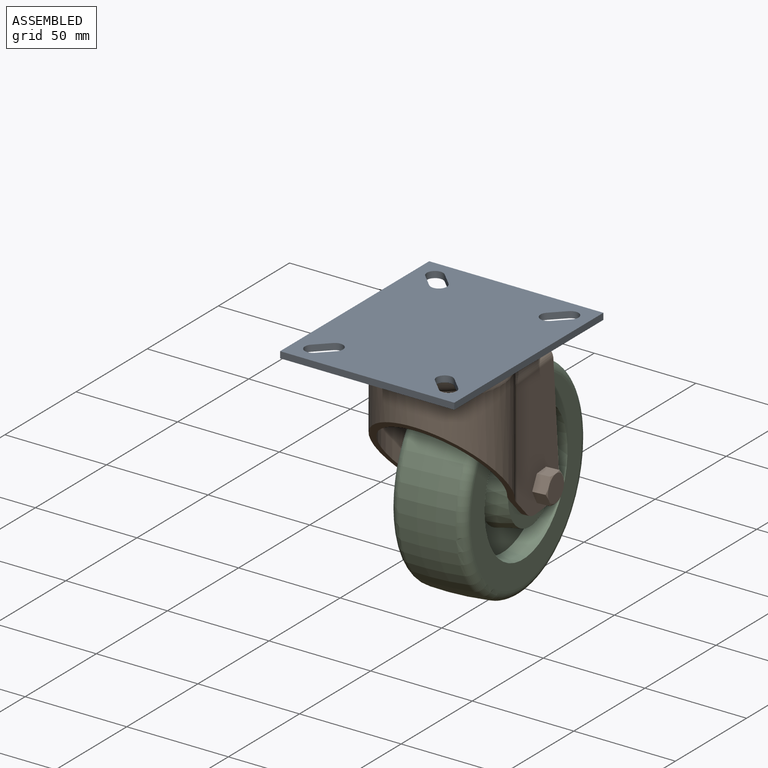
[diagram: assembled view]
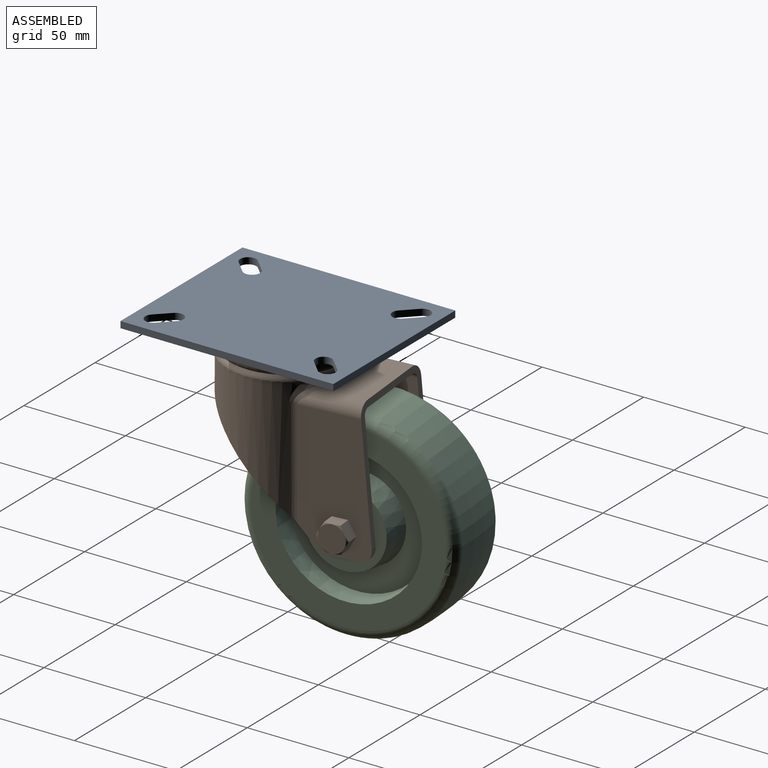
[diagram: assembled view, second angle]
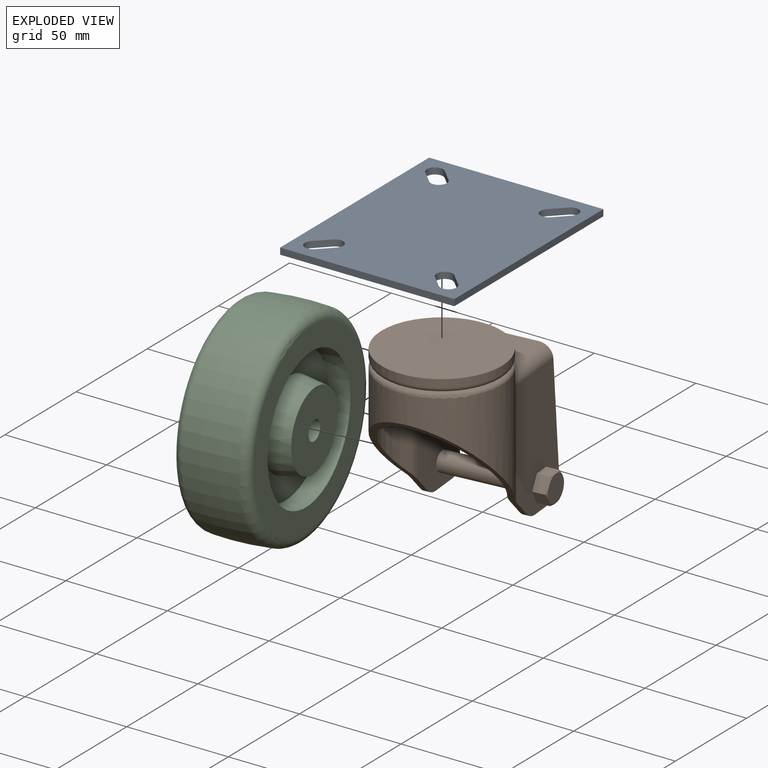
[diagram: exploded view]
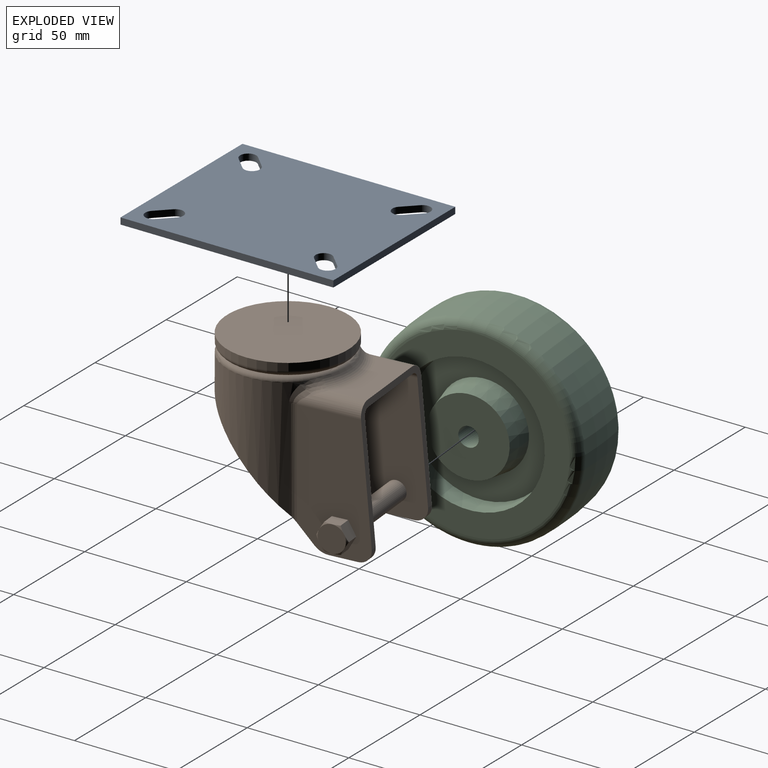
[diagram: exploded view, second angle]
ASSEMBLY  parts=3 mates=2
PART A: 26 faces, bbox 104.8x85.7x7.2 mm
  f0: plane 54.99x54.99mm, normal (0,0,-1), area 2375.1mm2, adj f25
  f1: plane 104.78x85.73mm, normal (0,0,1), area 8498.8mm2, adj f2,f3,f4,f5,f6,f7,f8,f9
  f2: cylinder r=3.97mm len=6.78mm, axis (0,0,1), area 39.6mm2, adj f1,f3,f5,f22
  f3: plane 6.35x6.35mm, normal (-0.71,-0.71,0), area 28.5mm2, adj f1,f2,f4,f22
  f4: cylinder r=3.97mm len=6.78mm, axis (0,0,1), area 39.6mm2, adj f1,f3,f5,f22
  f5: plane 6.35x6.35mm, normal (0.71,0.71,0), area 28.5mm2, adj f1,f2,f4,f22
  f6: cylinder r=3.97mm len=6.78mm, axis (0,0,1), area 39.6mm2, adj f1,f7,f9,f22
  f7: plane 6.35x6.35mm, normal (-0.71,0.71,0), area 28.5mm2, adj f1,f6,f8,f22
  f8: cylinder r=3.97mm len=6.78mm, axis (0,0,1), area 39.6mm2, adj f1,f7,f9,f22
  f9: plane 6.35x6.35mm, normal (0.71,-0.71,0), area 28.5mm2, adj f1,f6,f8,f22
  f10: cylinder r=3.97mm len=6.78mm, axis (0,0,1), area 39.6mm2, adj f1,f11,f13,f22
  f11: plane 6.35x6.35mm, normal (0.71,0.71,0), area 28.5mm2, adj f1,f10,f12,f22
  f12: cylinder r=3.97mm len=6.78mm, axis (0,0,1), area 39.6mm2, adj f1,f11,f13,f22
  f13: plane 6.35x6.35mm, normal (-0.71,-0.71,0), area 28.5mm2, adj f1,f10,f12,f22
  f14: cylinder r=3.97mm len=6.78mm, axis (0,0,1), area 39.6mm2, adj f1,f15,f17,f22
  f15: plane 6.35x6.35mm, normal (0.71,-0.71,0), area 28.5mm2, adj f1,f14,f16,f22
  f16: cylinder r=3.97mm len=6.78mm, axis (0,0,1), area 39.6mm2, adj f1,f15,f17,f22
  f17: plane 6.35x6.35mm, normal (-0.71,0.71,0), area 28.5mm2, adj f1,f14,f16,f22
  f18: plane 85.73x3.18mm, normal (-1,0,0), area 272.2mm2, adj f1,f19,f21,f22
  f19: plane 104.78x3.18mm, normal (0,-1,0), area 332.7mm2, adj f1,f18,f20,f22
  f20: plane 85.73x3.18mm, normal (1,0,0), area 272.2mm2, adj f1,f19,f21,f22
  f21: plane 104.78x3.18mm, normal (0,1,0), area 332.7mm2, adj f1,f18,f20,f22
  f22: plane 104.78x85.73mm, normal (0,0,-1), area 5759.7mm2, adj f2,f3,f4,f5,f6,f7,f8,f9
  f23: cylinder r=29.53mm len=59.06mm, axis (0,0,-1), area 377mm2, adj f22,f24
  f24: plane 59.06x59.06mm, normal (0,0,-1), area 364mm2, adj f23,f25
  f25: cylinder r=27.5mm len=54.99mm, axis (0,0,-1), area 351mm2, adj f0,f24
PART B: 66 faces, bbox 85.4x64.5x82.3 mm
  f0: plane 63.5x34.7mm, normal (0,-1,0), area 1842.7mm2, adj f7,f9,f16,f18,f20,f22,f23,f53
  f1: plane 63.5x34.7mm, normal (0,1,0), area 1842.7mm2, adj f8,f15,f16,f17,f19,f21,f23,f47
  f2: plane 63.5x34.7mm, normal (0,1,0), area 1920mm2, adj f16,f18,f20,f22,f23,f30,f31,f39
  f3: plane 63.5x34.7mm, normal (0,-1,0), area 1920mm2, adj f16,f17,f19,f21,f23,f32,f33,f39
  f4: cylinder r=29.53mm len=59.06mm, axis (0,0,1), area 3904.9mm2, adj f5,f9,f10,f14,f15,f23
  f5: torus R=26.99mm, axis (0,0,-1), area 677.2mm2, adj f4,f11,f12,f13,f37
  f6: plane 36.51x17.17mm, normal (0,0,1), area 500.9mm2, adj f7,f8,f12,f16
  f7: cylinder r=6.35mm len=29.72mm, axis (1,0,0), area 237.1mm2, adj f0,f6,f10,f11,f16
  f8: cylinder r=6.35mm len=29.72mm, axis (-1,0,0), area 237.1mm2, adj f1,f6,f13,f14,f16
  f9: cylinder r=6.35mm len=52.46mm, axis (0,0,1), area 171mm2, adj f0,f4,f10,f23
  f10: bspline ~11.63x9.76mm, area 44.4mm2, adj f4,f7,f9,f11
  f11: bspline ~13.7x9.92mm, area 52.9mm2, adj f5,f7,f10,f12
  f12: torus R=35.23mm, axis (0,0,-1), area 261.9mm2, adj f5,f6,f11,f13
  f13: bspline ~13.11x9.09mm, area 52.9mm2, adj f5,f8,f12,f14
  f14: bspline ~11.69x9.56mm, area 44.4mm2, adj f4,f8,f13,f15
  f15: cylinder r=6.35mm len=52.46mm, axis (0,0,1), area 171mm2, adj f1,f4,f14,f23
  f16: plane 63.18x49.45mm, normal (-1,0,0.09), area 524.8mm2, adj f0,f1,f2,f3,f6,f7,f8,f17
  f17: cylinder r=6.35mm len=6.9mm, axis (0,1,0), area 33.4mm2, adj f1,f3,f16,f19
  f18: cylinder r=6.35mm len=6.9mm, axis (0,1,0), area 33.4mm2, adj f0,f2,f16,f20
  f19: plane 13.5x3.18mm, normal (0,0,-1), area 42.9mm2, adj f1,f3,f17,f21
  f20: plane 13.5x3.18mm, normal (0,0,-1), area 42.9mm2, adj f0,f2,f18,f22
  f21: cylinder r=9.53mm len=6.79mm, axis (0,1,0), area 24mm2, adj f1,f3,f19,f23
  f22: cylinder r=9.53mm len=6.79mm, axis (0,1,0), area 24mm2, adj f0,f2,f20,f23
  f23: plane 59.24x56.87mm, normal (0.71,0,-0.7), area 642.8mm2, adj f0,f1,f2,f3,f4,f9,f15,f21
  f24: plane 53.37x53.16mm, normal (0,0,-1), area 2190.4mm2, adj f25,f26,f27,f28,f29,f35
  f25: torus R=35.23mm, axis (0,0,-1), area 359.7mm2, adj f24,f26,f27,f34
  f26: bspline ~14.55x8.2mm, area 56.6mm2, adj f24,f25,f28,f31
  f27: bspline ~13.96x7.44mm, area 56.6mm2, adj f24,f25,f29,f33
  f28: bspline ~11.63x11.36mm, area 56.2mm2, adj f24,f26,f30,f31,f35
  f29: bspline ~11.69x11.16mm, area 56.2mm2, adj f24,f27,f32,f33,f35
  f30: cylinder r=9.53mm len=52.46mm, axis (0,0,1), area 252.4mm2, adj f2,f23,f28,f35
  f31: cylinder r=3.17mm len=29.72mm, axis (1,0,0), area 119.3mm2, adj f2,f16,f26,f28,f34
  f32: cylinder r=9.53mm len=52.46mm, axis (0,0,1), area 252.4mm2, adj f3,f23,f29,f35
  f33: cylinder r=3.17mm len=29.72mm, axis (-1,0,0), area 119.3mm2, adj f3,f16,f27,f29,f34
  f34: plane 36.51x17.45mm, normal (0,0,-1), area 511.1mm2, adj f16,f25,f31,f33
  f35: cylinder r=26.35mm len=56.3mm, axis (0,0,1), area 3552mm2, adj f23,f24,f28,f29,f30,f32
  f36: cylinder r=29.53mm len=59.06mm, axis (0,0,-1), area 688mm2, adj f37,f38
  f37: torus R=26.99mm, axis (0,0,-1), area 717.1mm2, adj f5,f36
  f38: plane 59.06x59.06mm, normal (0,0,1), area 2739.1mm2, adj f36
  f39: cylinder r=4.76mm len=42.86mm, axis (0,1,0), area 1282.6mm2, adj f2,f3
  f40: plane 13.1x13.1mm, normal (0,1,0), area 134.7mm2, adj f41,f42,f43,f44,f45,f46
  f41: cone r=6.55mm half-angle=60deg, axis (0,-1,0), area 4.2mm2, adj f40,f51,f52
  f42: cone r=6.55mm half-angle=60deg, axis (0,-1,0), area 4.2mm2, adj f40,f50,f51
  f43: cone r=6.55mm half-angle=60deg, axis (0,-1,0), area 4.2mm2, adj f40,f49,f50
  f44: cone r=6.55mm half-angle=60deg, axis (0,-1,0), area 4.2mm2, adj f40,f48,f49
  f45: cone r=6.55mm half-angle=60deg, axis (0,-1,0), area 4.2mm2, adj f40,f47,f52
  f46: cone r=6.55mm half-angle=60deg, axis (0,-1,0), area 4.2mm2, adj f40,f47,f48
  f47: plane 7.36x7.17mm, normal (0.87,0,0.5), area 49.4mm2, adj f1,f45,f46,f48,f52
  f48: plane 7.36x7.17mm, normal (0.87,0,-0.5), area 49.4mm2, adj f1,f44,f46,f47,f49
  f49: plane 8.19x7.36mm, normal (0,0,-1), area 49.4mm2, adj f1,f43,f44,f48,f50
  f50: plane 7.36x7.17mm, normal (-0.87,0,-0.5), area 49.4mm2, adj f1,f42,f43,f49,f51
  f51: plane 7.36x7.17mm, normal (-0.87,0,0.5), area 49.4mm2, adj f1,f41,f42,f50,f52
  f52: plane 8.19x7.36mm, normal (0,0,1), area 49.4mm2, adj f1,f41,f45,f47,f51
  f53: plane 8.19x7.36mm, normal (0,0,1), area 49.4mm2, adj f0,f54,f58,f63,f64
  f54: plane 7.36x7.17mm, normal (-0.87,0,0.5), area 49.4mm2, adj f0,f53,f55,f62,f63
  f55: plane 7.36x7.17mm, normal (-0.87,0,-0.5), area 49.4mm2, adj f0,f54,f56,f61,f62
  f56: plane 8.19x7.36mm, normal (0,0,-1), area 49.4mm2, adj f0,f55,f57,f60,f61
  f57: plane 7.36x7.17mm, normal (0.87,0,-0.5), area 49.4mm2, adj f0,f56,f58,f59,f60
  f58: plane 7.36x7.17mm, normal (0.87,0,0.5), area 49.4mm2, adj f0,f53,f57,f59,f64
  f59: cone r=6.55mm half-angle=60deg, axis (0,1,0), area 4.2mm2, adj f57,f58,f65
  f60: cone r=6.55mm half-angle=60deg, axis (0,1,0), area 4.2mm2, adj f56,f57,f65
  f61: cone r=6.55mm half-angle=60deg, axis (0,1,0), area 4.2mm2, adj f55,f56,f65
  f62: cone r=6.55mm half-angle=60deg, axis (0,1,0), area 4.2mm2, adj f54,f55,f65
  f63: cone r=6.55mm half-angle=60deg, axis (0,1,0), area 4.2mm2, adj f53,f54,f65
  f64: cone r=6.55mm half-angle=60deg, axis (0,1,0), area 4.2mm2, adj f53,f58,f65
  f65: plane 13.1x13.1mm, normal (0,-1,0), area 134.7mm2, adj f59,f60,f61,f62,f63,f64
PART C: 14 faces, bbox 108.8x40x108.8 mm
  f0: plane 38.1x38.1mm, normal (0,-1,0), area 1068.8mm2, adj f1,f13
  f1: cone r=21.18mm half-angle=10deg, axis (0,1,0), area 1548.3mm2, adj f0,f2
  f2: plane 66.15x66.15mm, normal (0,-1,0), area 2028mm2, adj f1,f3
  f3: cone r=33.91mm half-angle=5deg, axis (0,-1,0), area 2012.1mm2, adj f2,f4
  f4: plane 90.97x90.97mm, normal (0,-1,0), area 2886.9mm2, adj f3,f5
  f5: torus R=45.48mm, axis (0,-1,0), area 2149.3mm2, adj f4,f6
  f6: revolved ~101.6x101.6mm, area 8351.3mm2, adj f5,f7
  f7: torus R=45.48mm, axis (0,-1,0), area 2149.3mm2, adj f6,f8
  f8: plane 90.97x90.97mm, normal (0,1,0), area 2886.9mm2, adj f7,f9
  f9: cone r=33.08mm half-angle=5deg, axis (0,1,0), area 2012.1mm2, adj f8,f10
  f10: plane 66.15x66.15mm, normal (0,1,0), area 2028mm2, adj f9,f11
  f11: cone r=19.05mm half-angle=10deg, axis (0,-1,0), area 1548.3mm2, adj f10,f12
  f12: plane 38.1x38.1mm, normal (0,1,0), area 1068.8mm2, adj f11,f13
  f13: cylinder r=4.76mm len=40.01mm, axis (0,-1,0), area 1197.1mm2, adj f0,f12
PLACE A rot(axis=(0,0,1),90deg) t=(0,0,0)mm
PLACE B rot(axis=(0,0,-1),84.5deg) t=(0,0,0)mm
PLACE C rot(axis=(0.6,-0.54,0.59),123.7deg) t=(3.83,-40.06,-40.85)mm
MATE revolute B.f12 <-> A.f23  axis (0,0,1) through (0,0,-7.24)mm
MATE revolute B.f39 <-> C.f1  axis (1,0.1,0) through (-3.63,37.93,-77.79)mm
